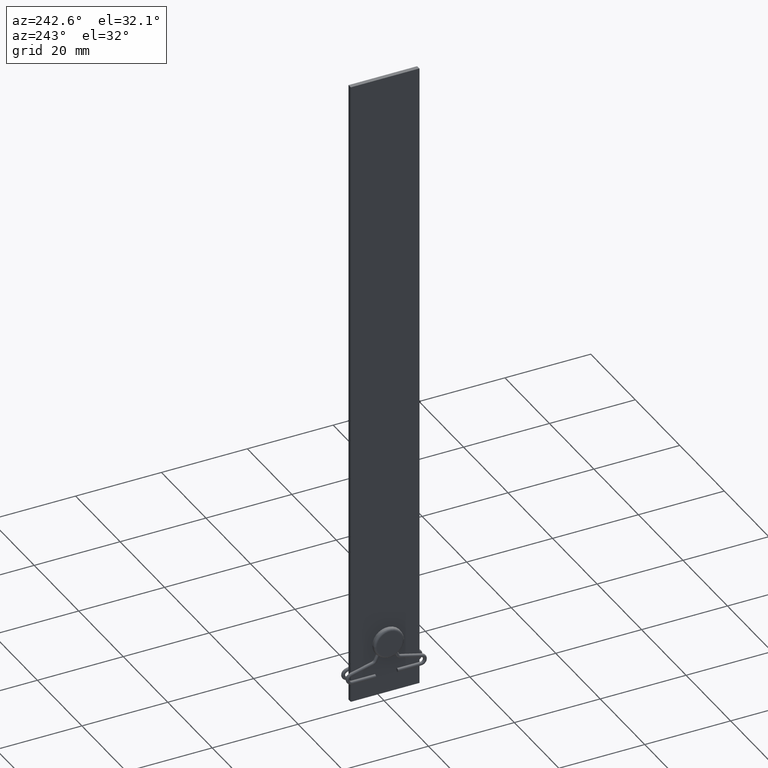
[diagram: clean part render]
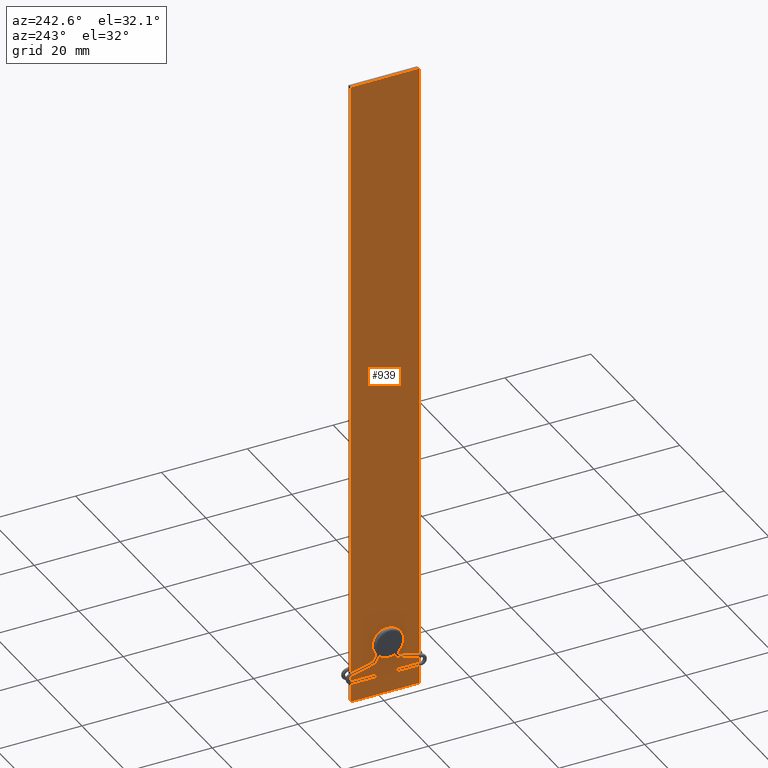
[diagram: same view with one face highlighted and labeled with its STEP entity id]
A machine part, auxiliary view. The second image highlights one B-rep face of the part: STEP entity #939.
In plain terms, the highlighted planar face has unit normal (1, 0, -0).
Its self-contained STEP definition (entity closure, byte-faithful):
#21 = DIRECTION ( 'NONE',  ( 1.000000000000000000, 1.219727444046192488E-16, -0.000000000000000000 ) ) ;
#114 = CARTESIAN_POINT ( 'NONE',  ( -0.5000000000000002220, 1.999999999999999556, 13.00000000000000000 ) ) ;
#183 = DIRECTION ( 'NONE',  ( -1.000000000000000000, -1.219727444046192488E-16, 0.000000000000000000 ) ) ;
#221 = ORIENTED_EDGE ( 'NONE', *, *, #996, .F. ) ;
#262 = CARTESIAN_POINT ( 'NONE',  ( -0.5000000000000008882, 7.999999999999998224, 0.000000000000000000 ) ) ;
#284 = LINE ( 'NONE', #591, #1448 ) ;
#301 = CARTESIAN_POINT ( 'NONE',  ( -0.5000000000000008882, 7.999999999999998224, 150.0000000000000000 ) ) ;
#428 = DIRECTION ( 'NONE',  ( -1.000000000000000000, -1.219727444046192488E-16, 0.000000000000000000 ) ) ;
#429 = DIRECTION ( 'NONE',  ( 1.219727444046192488E-16, -1.000000000000000000, 0.000000000000000000 ) ) ;
#591 = CARTESIAN_POINT ( 'NONE',  ( -0.5000000000000008882, 7.999999999999998224, 150.0000000000000000 ) ) ;
#596 = EDGE_LOOP ( 'NONE', ( #1203, #1328, #683, #2541 ) ) ;
#649 = EDGE_LOOP ( 'NONE', ( #221, #681 ) ) ;
#681 = ORIENTED_EDGE ( 'NONE', *, *, #2896, .F. ) ;
#683 = ORIENTED_EDGE ( 'NONE', *, *, #2402, .F. ) ;
#716 = CIRCLE ( 'NONE', #2071, 1.999999999999999556 ) ;
#893 = VERTEX_POINT ( 'NONE', #262 ) ;
#939 = ADVANCED_FACE ( 'NONE', ( #1744, #1952 ), #2196, .F. ) ;
#996 = EDGE_CURVE ( 'NONE', #1597, #2684, #716, .T. ) ;
#1024 = DIRECTION ( 'NONE',  ( -1.219727444046192488E-16, 1.000000000000000000, 0.000000000000000000 ) ) ;
#1085 = DIRECTION ( 'NONE',  ( 1.219727444046192488E-16, -1.000000000000000000, 0.000000000000000000 ) ) ;
#1203 = ORIENTED_EDGE ( 'NONE', *, *, #1636, .T. ) ;
#1327 = CARTESIAN_POINT ( 'NONE',  ( -0.4999999999999989453, -8.000000000000001776, 0.000000000000000000 ) ) ;
#1328 = ORIENTED_EDGE ( 'NONE', *, *, #1539, .F. ) ;
#1342 = VERTEX_POINT ( 'NONE', #301 ) ;
#1441 = LINE ( 'NONE', #2644, #2324 ) ;
#1448 = VECTOR ( 'NONE', #1085, 1000.000000000000000 ) ;
#1539 = EDGE_CURVE ( 'NONE', #2652, #2083, #3074, .T. ) ;
#1587 = CARTESIAN_POINT ( 'NONE',  ( -0.4999999999999989453, -8.000000000000001776, 150.0000000000000000 ) ) ;
#1597 = VERTEX_POINT ( 'NONE', #2840 ) ;
#1636 = EDGE_CURVE ( 'NONE', #893, #2083, #1441, .T. ) ;
#1671 = VECTOR ( 'NONE', #2138, 1000.000000000000000 ) ;
#1686 = CARTESIAN_POINT ( 'NONE',  ( -0.5000000000000008882, 7.999999999999998224, 150.0000000000000000 ) ) ;
#1720 = EDGE_CURVE ( 'NONE', #1342, #893, #2853, .T. ) ;
#1744 = FACE_BOUND ( 'NONE', #649, .T. ) ;
#1815 = VECTOR ( 'NONE', #1833, 1000.000000000000000 ) ;
#1833 = DIRECTION ( 'NONE',  ( -0.000000000000000000, -0.000000000000000000, -1.000000000000000000 ) ) ;
#1952 = FACE_OUTER_BOUND ( 'NONE', #596, .T. ) ;
#2024 = AXIS2_PLACEMENT_3D ( 'NONE', #2339, #428, #2769 ) ;
#2071 = AXIS2_PLACEMENT_3D ( 'NONE', #2333, #183, #2588 ) ;
#2083 = VERTEX_POINT ( 'NONE', #1327 ) ;
#2138 = DIRECTION ( 'NONE',  ( -0.000000000000000000, -0.000000000000000000, -1.000000000000000000 ) ) ;
#2181 = CIRCLE ( 'NONE', #2024, 1.999999999999999556 ) ;
#2196 = PLANE ( 'NONE',  #2525 ) ;
#2324 = VECTOR ( 'NONE', #429, 1000.000000000000000 ) ;
#2333 = CARTESIAN_POINT ( 'NONE',  ( -0.5000000000000000000, 6.098637220230962441E-17, 13.00000000000000000 ) ) ;
#2339 = CARTESIAN_POINT ( 'NONE',  ( -0.5000000000000000000, 6.098637220230962441E-17, 13.00000000000000000 ) ) ;
#2371 = CARTESIAN_POINT ( 'NONE',  ( -0.5000000000000008882, 7.999999999999998224, 150.0000000000000000 ) ) ;
#2402 = EDGE_CURVE ( 'NONE', #1342, #2652, #284, .T. ) ;
#2525 = AXIS2_PLACEMENT_3D ( 'NONE', #1686, #21, #1024 ) ;
#2541 = ORIENTED_EDGE ( 'NONE', *, *, #1720, .T. ) ;
#2588 = DIRECTION ( 'NONE',  ( -1.084202172485504681E-16, 1.000000000000000000, 0.000000000000000000 ) ) ;
#2644 = CARTESIAN_POINT ( 'NONE',  ( -0.5000000000000008882, 7.999999999999998224, 0.000000000000000000 ) ) ;
#2652 = VERTEX_POINT ( 'NONE', #2951 ) ;
#2684 = VERTEX_POINT ( 'NONE', #114 ) ;
#2769 = DIRECTION ( 'NONE',  ( -1.084202172485504681E-16, 1.000000000000000000, 0.000000000000000000 ) ) ;
#2840 = CARTESIAN_POINT ( 'NONE',  ( -0.4999999999999997780, -1.999999999999999556, 13.00000000000000000 ) ) ;
#2853 = LINE ( 'NONE', #2371, #1671 ) ;
#2896 = EDGE_CURVE ( 'NONE', #2684, #1597, #2181, .T. ) ;
#2951 = CARTESIAN_POINT ( 'NONE',  ( -0.4999999999999989453, -8.000000000000001776, 150.0000000000000000 ) ) ;
#3074 = LINE ( 'NONE', #1587, #1815 ) ;